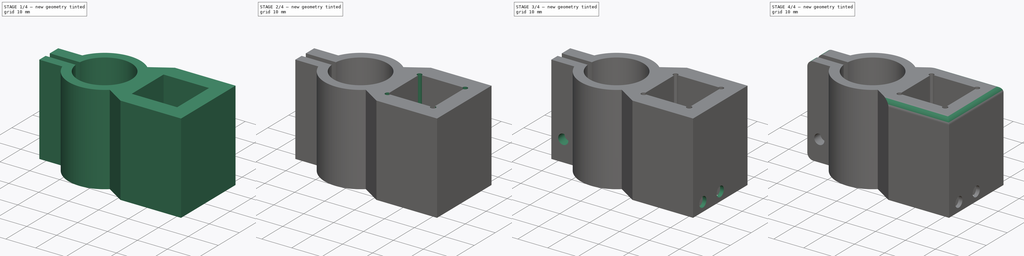
[diagram: build sequence overview — one tinted view per stage of 4, left to right]
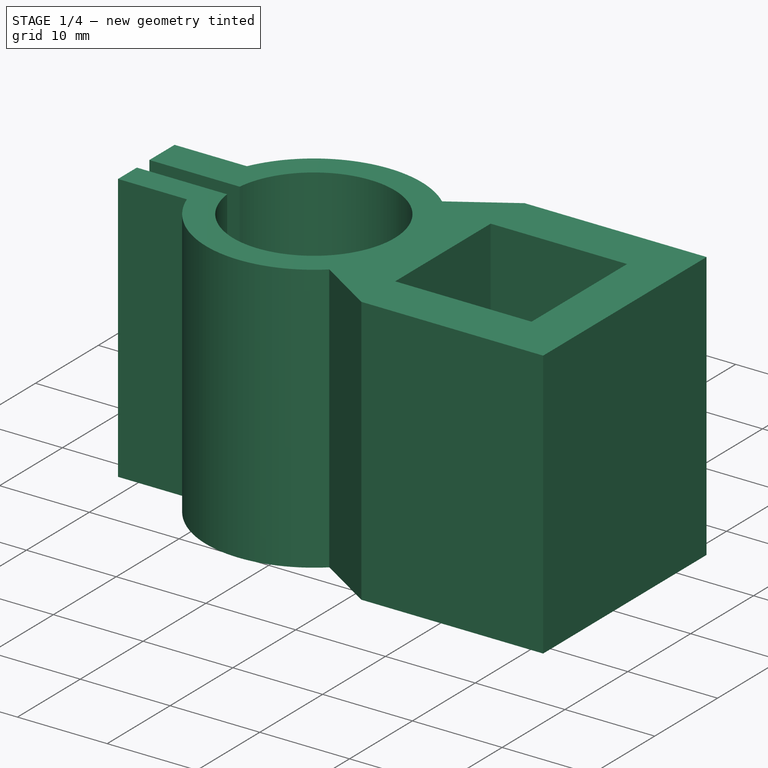
[diagram: stage 1 of 4 — iso view after this stage's code; geometry added in this stage tinted green]
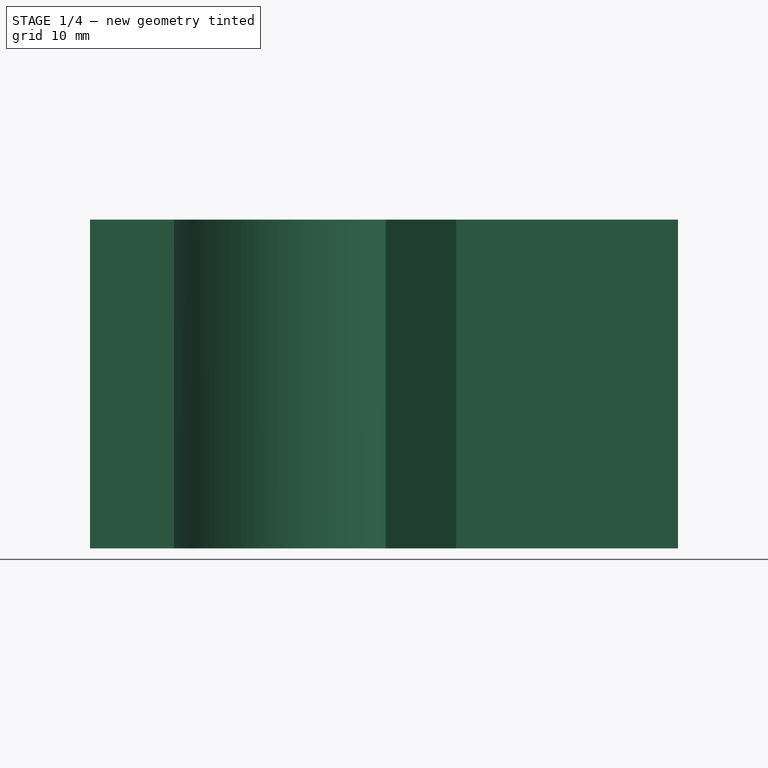
[diagram: stage 1 of 4 — front view after this stage's code; geometry added in this stage tinted green]
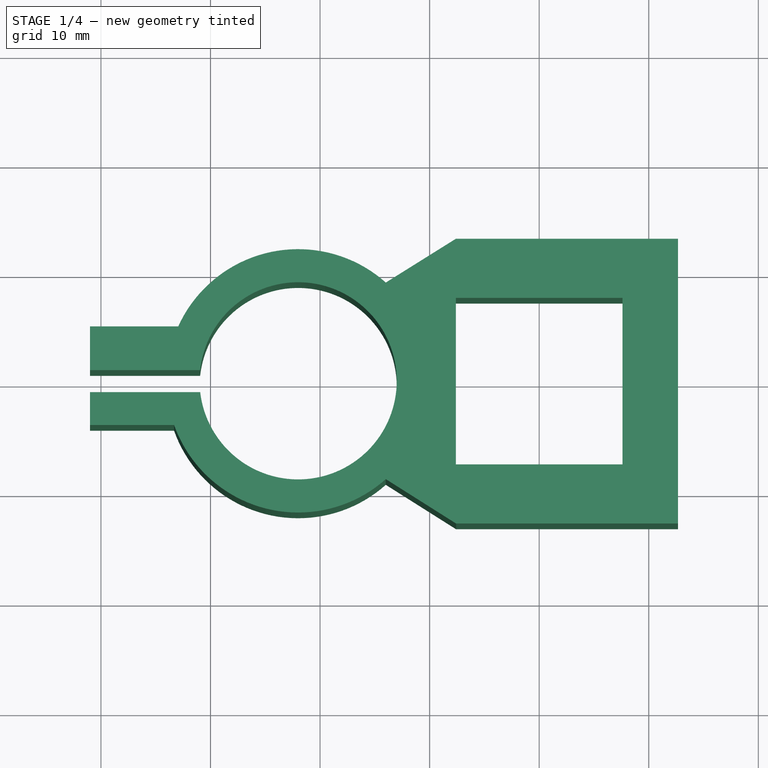
[diagram: stage 1 of 4 — top view after this stage's code; geometry added in this stage tinted green]
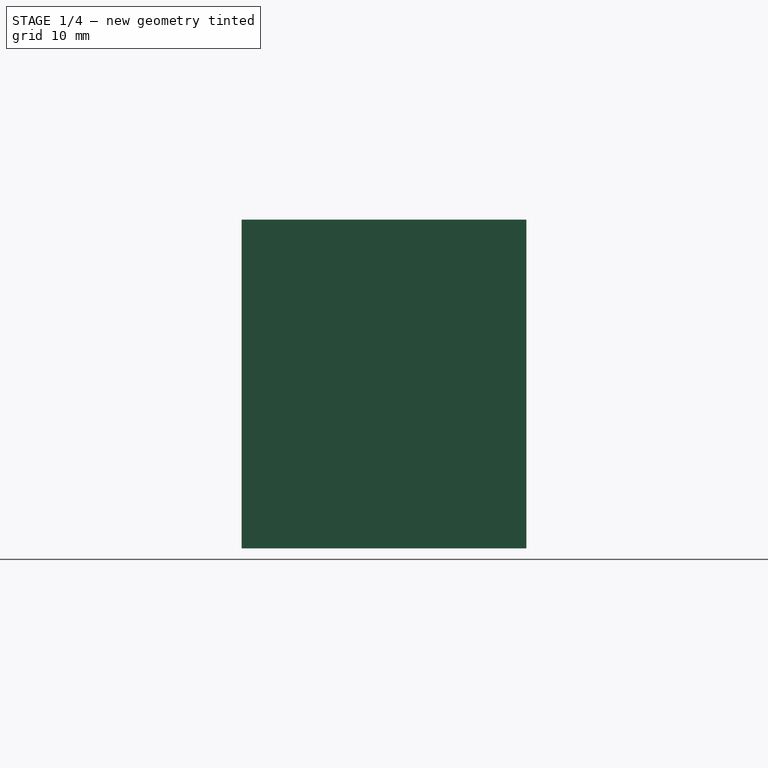
[diagram: stage 1 of 4 — right view after this stage's code; geometry added in this stage tinted green]
FCSTD DOCUMENT  (FreeCAD 0.16R6698 (Git))
Label: pnp head syringe mount
License: All rights reserved
LicenseURL: http://en.wikipedia.org/wiki/All_rights_reserved
objects: Sketcher::SketchObject×7, PartDesign::Pocket×6, PartDesign::Fillet×2, PartDesign::Pad×1
note: 23 computed .brp shape members not serialized (recipe doc carries the construction recipe); baked Part::Feature solids carry a one-line shape summary decoded from their .brp

FEATURE [Sketcher::SketchObject] Sketch
  sketch-geometry (4):
    g0: LineSegment StartX=-41 StartY=13 StartZ=0 EndX=12.6714 EndY=13 EndZ=0
    g1: LineSegment StartX=12.6714 StartY=13 StartZ=0 EndX=12.6714 EndY=-13 EndZ=0
    g2: LineSegment StartX=12.6714 StartY=-13 StartZ=0 EndX=-41 EndY=-13 EndZ=0
    g3: LineSegment StartX=-41 StartY=-13 StartZ=0 EndX=-41 EndY=13 EndZ=0
  constraints (10):
    c: Coincident(g0,g1)
    c: Coincident(g1,g2)
    c: Coincident(g2,g3)
    c: Coincident(g3,g0)
    c: Horizontal(g0)
    c: Horizontal(g2)
    c: Vertical(g1)
    c: Vertical(g3)
    c: DistanceY(g1,g1) = 26
    c: Symmetric(g0,g1,g-1)
FEATURE [PartDesign::Pad] Pad
  Length = 30
  Length2 = 100
  Sketch = -> Sketch
  Type = 0
FEATURE [Sketcher::SketchObject] Sketch001
  Placement = pos=(0,0,0) rot=(1,0,0;3.14159rad)
  Support = -> Pad [Face5]
  sketch-geometry (18):
    g0: LineSegment StartX=-7.6 StartY=7.6 StartZ=0 EndX=7.6 EndY=7.6 EndZ=0
    g1: LineSegment StartX=7.6 StartY=7.6 StartZ=0 EndX=7.6 EndY=-7.6 EndZ=0
    g2: LineSegment StartX=7.6 StartY=-7.6 StartZ=0 EndX=-7.6 EndY=-7.6 EndZ=0
    g3: LineSegment StartX=-7.6 StartY=-7.6 StartZ=0 EndX=-7.6 EndY=7.6 EndZ=0
    g4: ArcOfCircle CenterX=-22 CenterY=-0.027864 CenterZ=0 NormalX=0 NormalY=0 NormalZ=1 Radius=9 StartAngle=3.24982 EndAngle=9.31032
    g5: ArcOfCircle CenterX=-22 CenterY=-0.027864 CenterZ=0 NormalX=0 NormalY=0 NormalZ=1 Radius=12.0208 StartAngle=0.842614 EndAngle=2.79991
    g6: LineSegment StartX=-43 StartY=14 StartZ=0 EndX=-6 EndY=14 EndZ=0
    g7: LineSegment StartX=-6 StartY=-14 StartZ=0 EndX=-43 EndY=-14 EndZ=0
    g8: LineSegment StartX=-43 StartY=-14 StartZ=0 EndX=-43 EndY=-5 EndZ=0
    g9: LineSegment StartX=-6 StartY=14 StartZ=0 EndX=-14 EndY=8.94427 EndZ=0
    g10: LineSegment StartX=-14 StartY=-9 StartZ=0 EndX=-6 EndY=-14 EndZ=0
    g11: LineSegment StartX=-43 StartY=4 StartZ=0 EndX=-33.3259 EndY=4 EndZ=0
    g12: LineSegment StartX=-32.9443 StartY=-5 StartZ=0 EndX=-43 EndY=-5 EndZ=0
    g13: ArcOfCircle CenterX=-22 CenterY=-0.027864 CenterZ=0 NormalX=0 NormalY=0 NormalZ=1 Radius=12.0208 StartAngle=3.56803 EndAngle=5.44057
    g14: LineSegment StartX=-43 StartY=4 StartZ=0 EndX=-43 EndY=14 EndZ=0
    g15: LineSegment StartX=-42 StartY=1 StartZ=0 EndX=-30.9411 EndY=1 EndZ=0
    g16: LineSegment StartX=-30.9473 StartY=-1 StartZ=0 EndX=-42 EndY=-1 EndZ=0
    g17: LineSegment StartX=-42 StartY=-1 StartZ=0 EndX=-42 EndY=1 EndZ=0
  constraints (39):
    c: Coincident(g0,g1)
    c: Coincident(g1,g2)
    c: Coincident(g2,g3)
    c: Coincident(g3,g0)
    c: Horizontal(g0)
    c: Horizontal(g2)
    c: Vertical(g1)
    c: Vertical(g3)
    c: Equal(g0,g3)
    c: DistanceX(g0,g0) = 15.2
    c: Symmetric(g0,g0,g-2)
    c: Symmetric(g0,g2,g-1)
    c: Radius(g4) = 9
    c: Coincident(g5,g4)
    c: Coincident(g7,g8)
    c: Coincident(g14,g6)
    c: Horizontal(g6)
    c: Horizontal(g7)
    c: Vertical(g8)
    c: Coincident(g9,g6)
    c: Coincident(g9,g5)
    c: Coincident(g10,g13)
    c: Coincident(g10,g7)
    c: Horizontal(g11)
    c: Horizontal(g12)
    c: Equal(g5,g13)
    c: Coincident(g5,g13)
    c: Tangent(g8,g14)
    c: Coincident(g11,g14)
    c: Coincident(g11,g5)
    c: Coincident(g12,g13)
    c: Coincident(g12,g8)
    c: Coincident(g16,g17)
    c: Coincident(g17,g15)
    c: Horizontal(g15)
    c: Horizontal(g16)
    c: Vertical(g17)
    c: Coincident(g15,g4)
    c: Coincident(g16,g4)
FEATURE [PartDesign::Pocket] Pocket
  Length = 5
  Sketch = -> Sketch001
  Type = 1
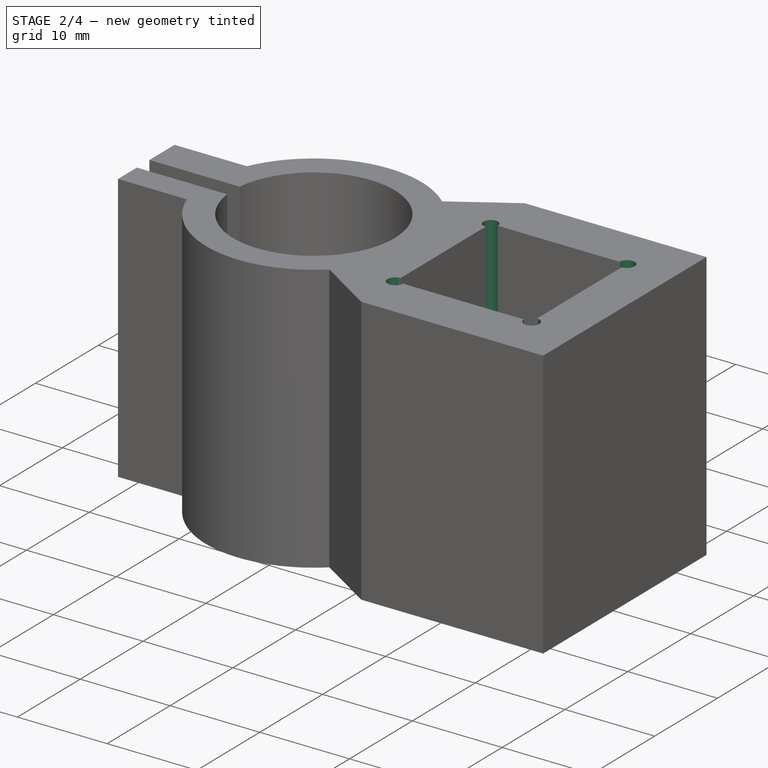
[diagram: stage 2 of 4 — iso view after this stage's code; geometry added in this stage tinted green]
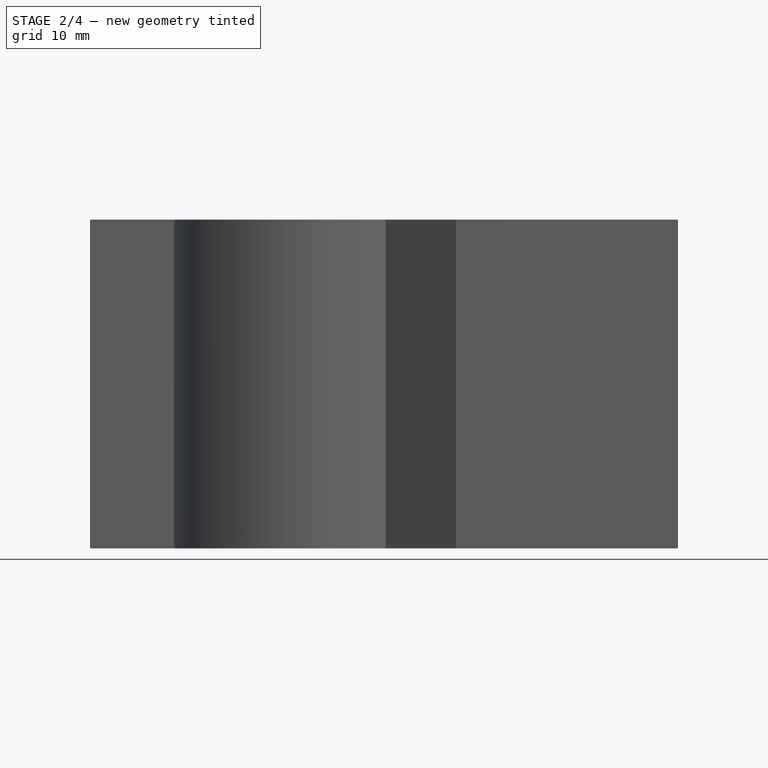
[diagram: stage 2 of 4 — front view after this stage's code; geometry added in this stage tinted green]
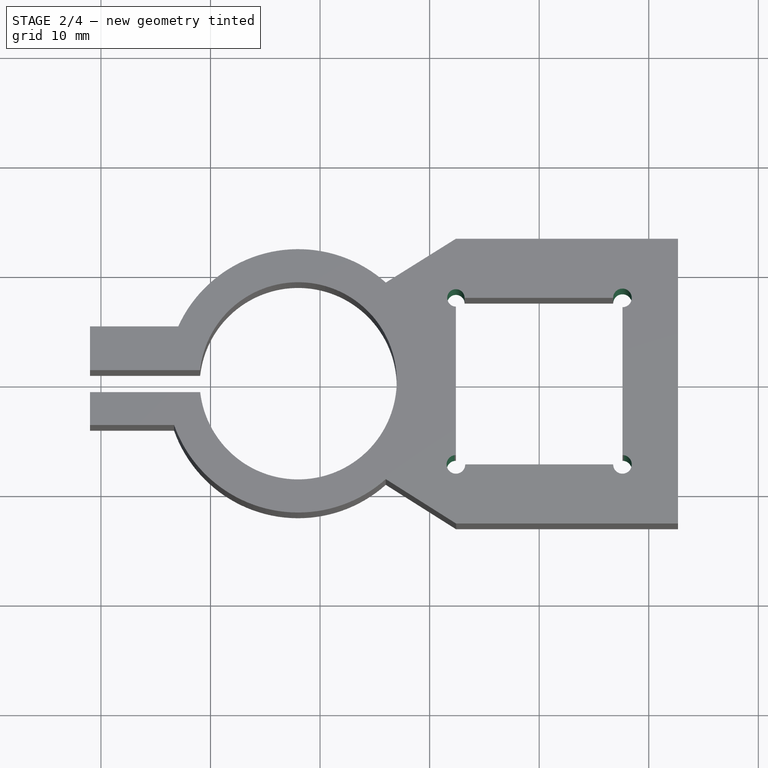
[diagram: stage 2 of 4 — top view after this stage's code; geometry added in this stage tinted green]
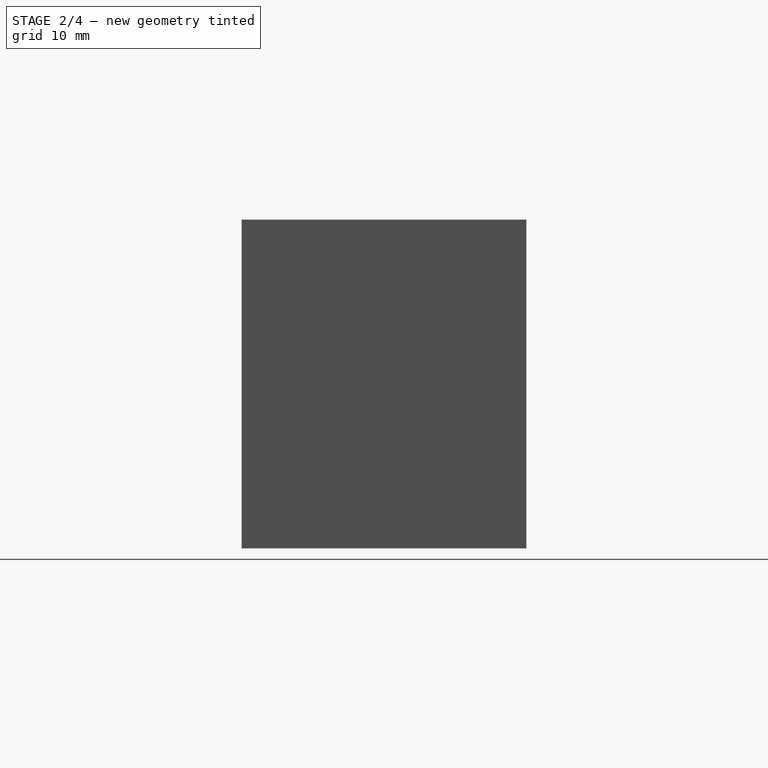
[diagram: stage 2 of 4 — right view after this stage's code; geometry added in this stage tinted green]
FEATURE [Sketcher::SketchObject] Sketch002
  ExternalGeometry = -> [Pocket]
  Placement = pos=(0,0,0) rot=(1,0,0;3.14159rad)
  Support = -> Pocket [Face2]
  sketch-geometry (4):
    g0: Circle CenterX=7.6 CenterY=-7.6 CenterZ=0 NormalX=0 NormalY=0 NormalZ=1 Radius=0.848528
    g1: Circle CenterX=-7.6 CenterY=-7.6 CenterZ=0 NormalX=0 NormalY=0 NormalZ=1 Radius=0.793369
    g2: Circle CenterX=-7.6 CenterY=7.6 CenterZ=0 NormalX=0 NormalY=0 NormalZ=1 Radius=0.848528
    g3: Circle CenterX=7.6 CenterY=7.6 CenterZ=0 NormalX=0 NormalY=0 NormalZ=1 Radius=0.848528
FEATURE [PartDesign::Pocket] Pocket001
  Length = 5
  Sketch = -> Sketch002
  Type = 1
FEATURE [Sketcher::SketchObject] Sketch003
  Placement = pos=(0,0,0) rot=(1,0,0;3.14159rad)
  Support = -> Pocket001 [Face2]
  sketch-geometry (16):
    g0: LineSegment StartX=8.60983 StartY=11.2141 StartZ=0 EndX=11.4098 EndY=11.2141 EndZ=0
    g1: LineSegment StartX=11.4098 StartY=11.2141 StartZ=0 EndX=11.4098 EndY=5.61415 EndZ=0
    g2: LineSegment StartX=11.4098 StartY=5.61415 StartZ=0 EndX=8.60983 EndY=5.61415 EndZ=0
    g3: LineSegment StartX=8.60983 StartY=5.61415 StartZ=0 EndX=8.60983 EndY=11.2141 EndZ=0
    g4: LineSegment [constr] StartX=3.66602 StartY=8.33073 StartZ=0 EndX=14.2682 EndY=8.33073 EndZ=0
    g5: LineSegment [constr] StartX=14.2682 StartY=8.33073 StartZ=0 EndX=14.2682 EndY=6.63073 EndZ=0
    g6: LineSegment [constr] StartX=14.2682 StartY=6.63073 StartZ=0 EndX=3.66602 EndY=6.63073 EndZ=0
    g7: LineSegment [constr] StartX=3.66602 StartY=6.63073 StartZ=0 EndX=3.66602 EndY=8.33073 EndZ=0
    g8: LineSegment [constr] StartX=3.57455 StartY=0.630725 StartZ=0 EndX=13.6141 EndY=0.630725 EndZ=0
    g9: LineSegment [constr] StartX=13.6141 StartY=0.630725 StartZ=0 EndX=13.6141 EndY=-1.06927 EndZ=0
    g10: LineSegment [constr] StartX=13.6141 StartY=-1.06927 StartZ=0 EndX=3.57455 EndY=-1.06927 EndZ=0
    g11: LineSegment [constr] StartX=3.57455 StartY=-1.06927 StartZ=0 EndX=3.57455 EndY=0.630725 EndZ=0
    g12: LineSegment StartX=8.63418 StartY=2.67017 StartZ=0 EndX=11.4342 EndY=2.67017 EndZ=0
    g13: LineSegment StartX=11.4342 StartY=2.67017 StartZ=0 EndX=11.4342 EndY=-2.92983 EndZ=0
    g14: LineSegment StartX=11.4342 StartY=-2.92983 StartZ=0 EndX=8.63418 EndY=-2.92983 EndZ=0
    g15: LineSegment StartX=8.63418 StartY=-2.92983 StartZ=0 EndX=8.63418 EndY=2.67017 EndZ=0
  constraints (39):
    c: Coincident(g0,g1)
    c: Coincident(g1,g2)
    c: Coincident(g2,g3)
    c: Coincident(g3,g0)
    c: Horizontal(g0)
    c: Horizontal(g2)
    c: Vertical(g1)
    c: Vertical(g3)
    c: DistanceX(g0,g0) = 2.8
    c: DistanceY(g3,g3) = 5.6
    c: Coincident(g4,g5)
    c: Coincident(g5,g6)
    c: Coincident(g6,g7)
    c: Coincident(g7,g4)
    c: Horizontal(g4)
    c: Horizontal(g6)
    c: Vertical(g5)
    c: Vertical(g7)
    c: DistanceY(g5,g5) = 1.7
    c: Coincident(g8,g9)
    c: Coincident(g9,g10)
    c: Coincident(g10,g11)
    c: Coincident(g11,g8)
    c: Horizontal(g8)
    c: Horizontal(g10)
    c: Vertical(g9)
    c: Vertical(g11)
    c: DistanceY(g9,g9) = 1.7
    c: DistanceY(g8,g5) = 6
    c: Coincident(g12,g13)
    c: Coincident(g13,g14)
    c: Coincident(g14,g15)
    c: Coincident(g15,g12)
    c: Horizontal(g12)
    c: Horizontal(g14)
    c: Vertical(g13)
    c: Vertical(g15)
    c: DistanceX(g12,g12) = 2.8
    c: DistanceY(g15,g15) = 5.6
FEATURE [PartDesign::Pocket] Pocket002
  Length = 6
  Sketch = -> Sketch003
  Type = 0
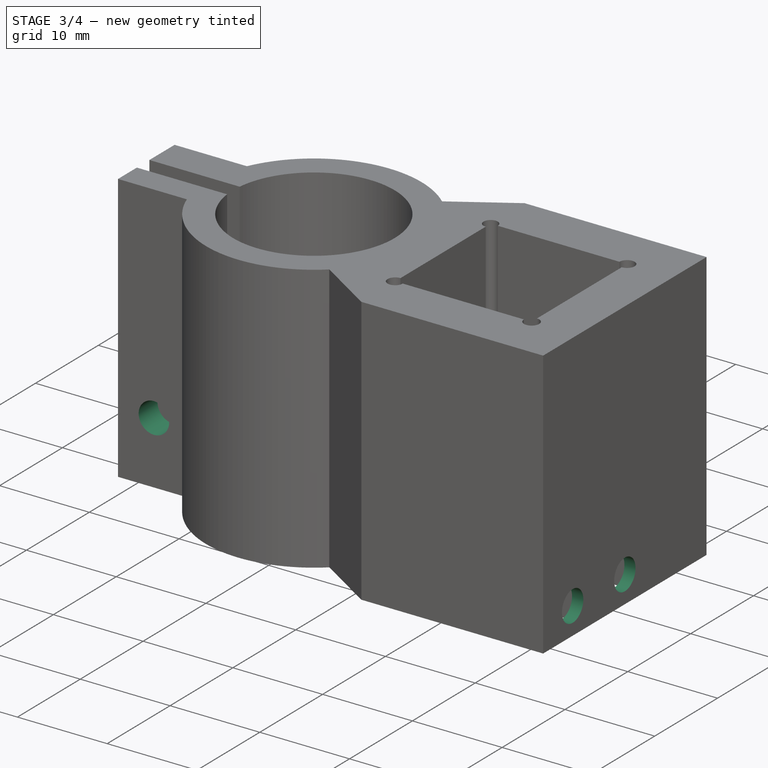
[diagram: stage 3 of 4 — iso view after this stage's code; geometry added in this stage tinted green]
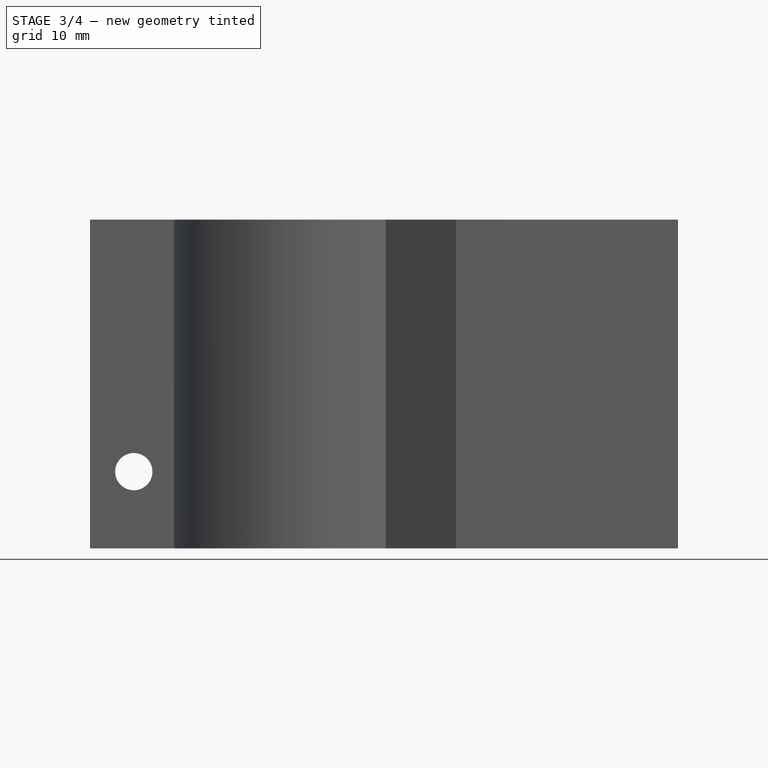
[diagram: stage 3 of 4 — front view after this stage's code; geometry added in this stage tinted green]
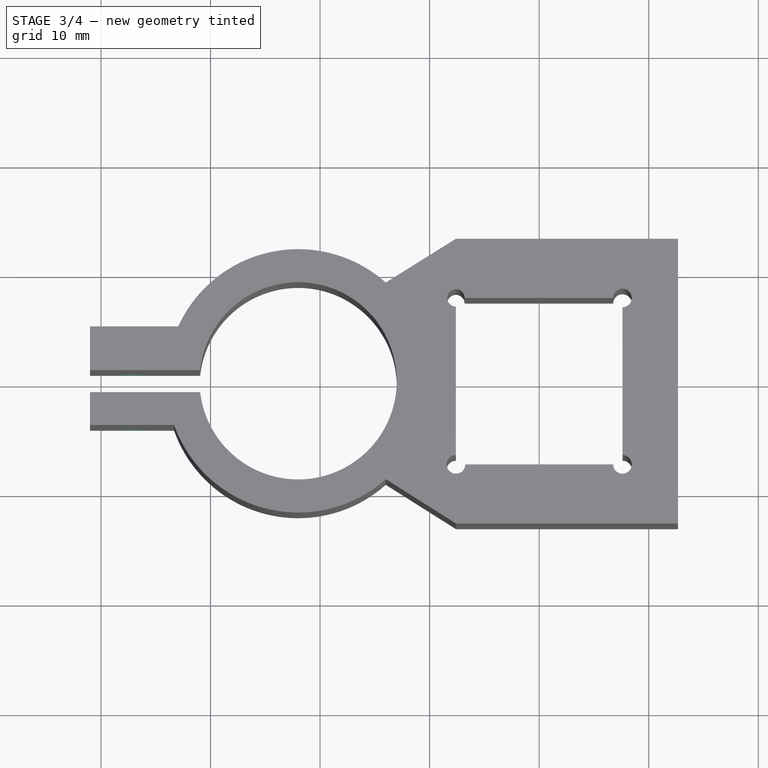
[diagram: stage 3 of 4 — top view after this stage's code; geometry added in this stage tinted green]
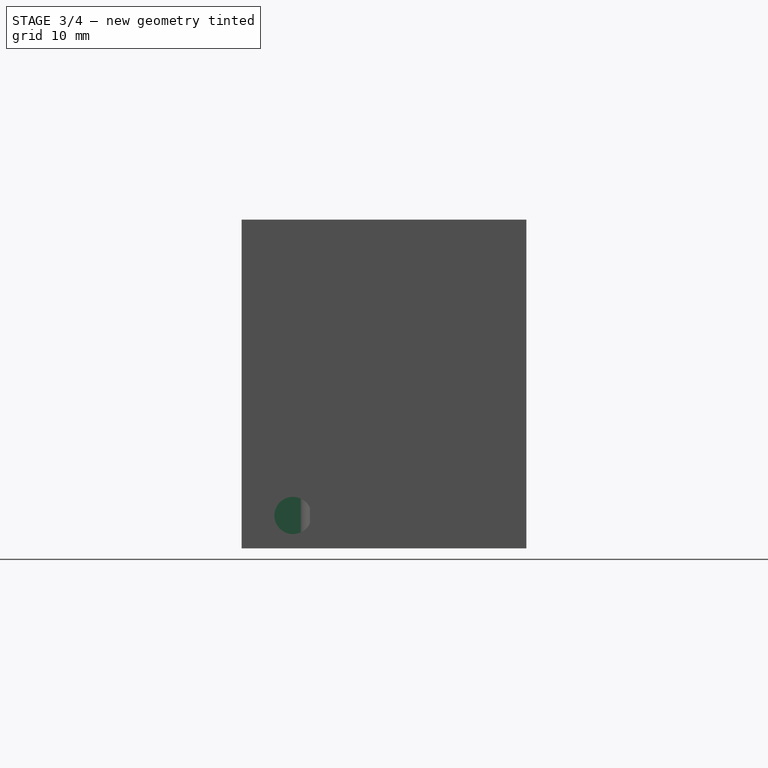
[diagram: stage 3 of 4 — right view after this stage's code; geometry added in this stage tinted green]
FEATURE [Sketcher::SketchObject] Sketch004
  Placement = pos=(12.6714,0,0) rot=(0.57735,0.57735,0.57735;2.0944rad)
  Support = -> Pocket002 [Face3]
  sketch-geometry (2):
    g0: Circle CenterX=0 CenterY=3 CenterZ=0 NormalX=0 NormalY=0 NormalZ=1 Radius=1.7
    g1: Circle CenterX=-8.3038 CenterY=3 CenterZ=0 NormalX=0 NormalY=0 NormalZ=1 Radius=1.7
  constraints (3):
    c: PointOnObject(g0,g-2)
    c: Radius(g1) = 1.7
    c: Equal(g1,g0)
FEATURE [PartDesign::Pocket] Pocket003
  Length = 6
  Sketch = -> Sketch004
  Type = 0
FEATURE [Sketcher::SketchObject] Sketch005
  Placement = pos=(0,-4,0) rot=(1,0,0;1.5708rad)
  Support = -> Pocket003 [Face13]
  sketch-geometry (1):
    g0: Circle CenterX=-37 CenterY=7 CenterZ=0 NormalX=0 NormalY=0 NormalZ=1 Radius=1.7
  constraints (1):
    c: Radius(g0) = 1.7
FEATURE [PartDesign::Pocket] Pocket004
  Length = 5
  Sketch = -> Sketch005
  Type = 1
FEATURE [Sketcher::SketchObject] Sketch006
  ExternalGeometry = -> [Pocket004]
  Placement = pos=(0,5,0) rot=(0,0.707107,0.707107;3.14159rad)
  Support = -> Pocket004 [Face8]
  sketch-geometry (7):
    g0: LineSegment StartX=39.6927 StartY=8.99071 StartZ=0 EndX=36.6223 EndY=10.3273 EndZ=0
    g1: LineSegment StartX=36.6223 StartY=10.3273 StartZ=0 EndX=33.9297 EndY=8.33655 EndZ=0
    g2: LineSegment StartX=33.9297 StartY=8.33655 StartZ=0 EndX=34.3073 EndY=5.00929 EndZ=0
    g3: LineSegment StartX=34.3073 StartY=5.00929 StartZ=0 EndX=37.3777 EndY=3.67274 EndZ=0
    g4: LineSegment StartX=37.3777 StartY=3.67274 StartZ=0 EndX=40.0703 EndY=5.66345 EndZ=0
    g5: LineSegment StartX=40.0703 StartY=5.66345 StartZ=0 EndX=39.6927 EndY=8.99071 EndZ=0
    g6: Circle [constr] CenterX=37 CenterY=7 CenterZ=0 NormalX=0 NormalY=0 NormalZ=1 Radius=3.34863
  constraints (15):
    c: Coincident(g0,g1)
    c: Coincident(g1,g2)
    c: Coincident(g2,g3)
    c: Coincident(g3,g4)
    c: Coincident(g4,g5)
    c: Coincident(g5,g0)
    c: Equal(g0, g1-g5) x5
    c: PointOnObject(g0,g6)
    c: PointOnObject(g1,g6)
    c: PointOnObject(g2,g6)
    c: PointOnObject(g3,g6)
    c: PointOnObject(g4,g6)
    c: PointOnObject(g5,g6)
    c: Coincident(g6,g-3)
    c: Distance(g0,g2) = 5.8
FEATURE [PartDesign::Pocket] Pocket005
  Length = 3
  Sketch = -> Sketch006
  Type = 0
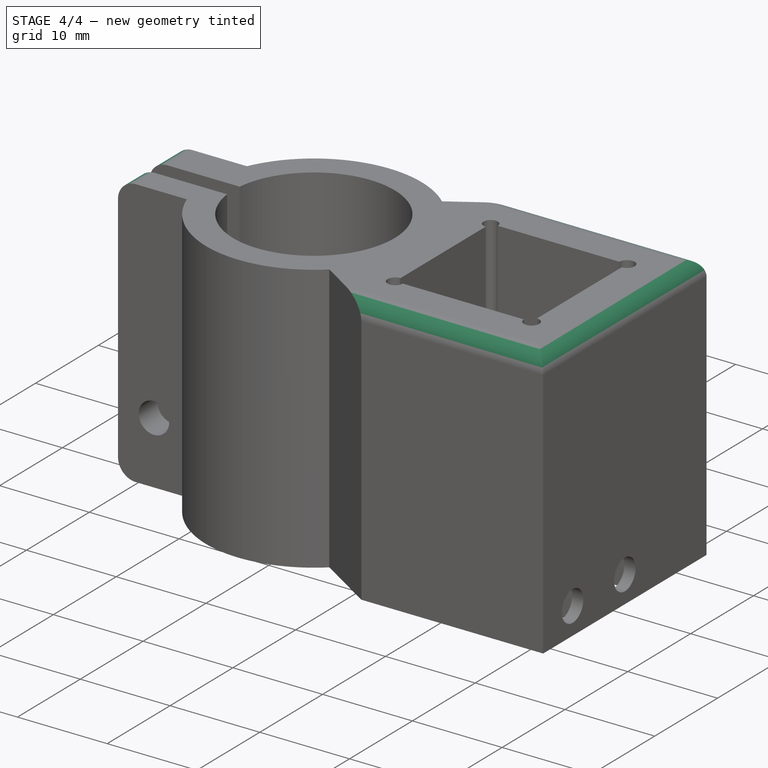
[diagram: stage 4 of 4 — iso view after this stage's code; geometry added in this stage tinted green]
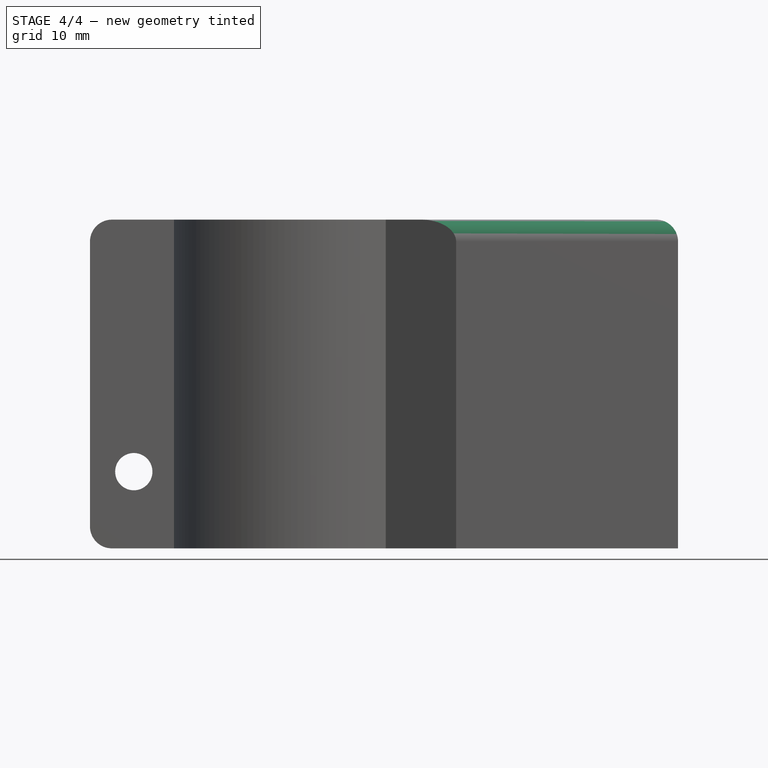
[diagram: stage 4 of 4 — front view after this stage's code; geometry added in this stage tinted green]
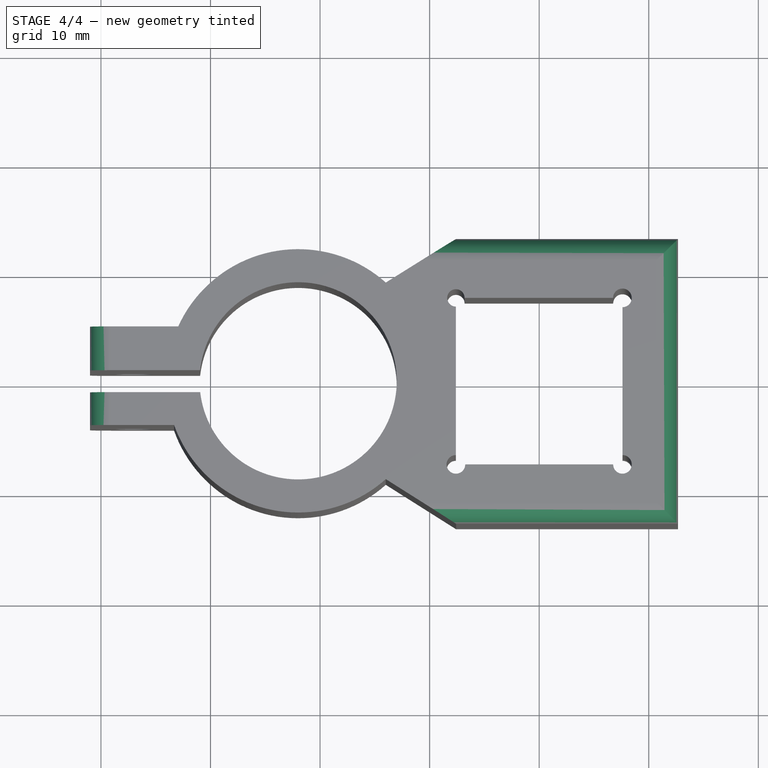
[diagram: stage 4 of 4 — top view after this stage's code; geometry added in this stage tinted green]
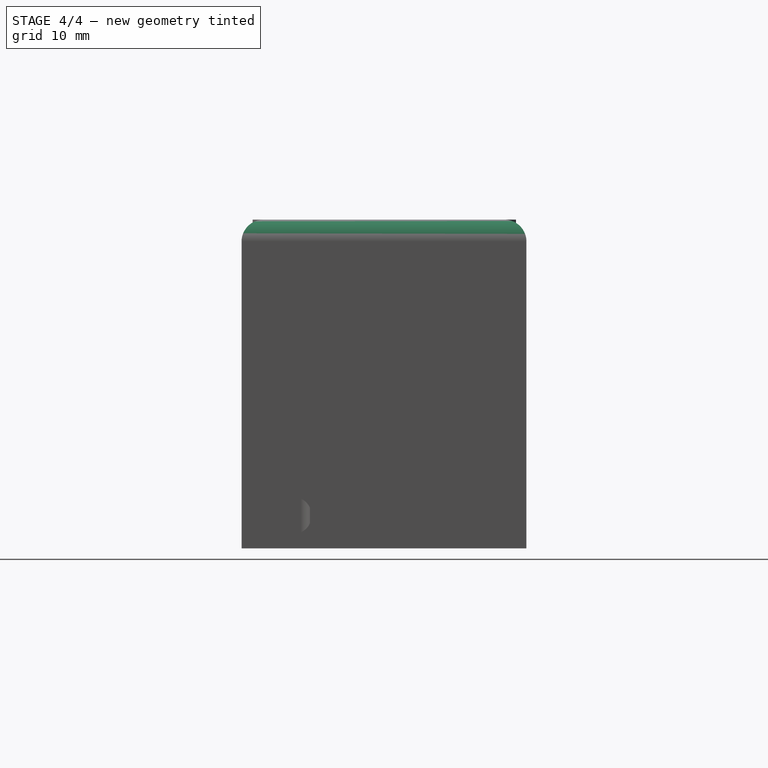
[diagram: stage 4 of 4 — right view after this stage's code; geometry added in this stage tinted green]
FEATURE [PartDesign::Fillet] Fillet
  Base = -> Pocket005 [Edge42,Edge36,Edge3,Edge50,Edge45]
  Radius = 2
FEATURE [PartDesign::Fillet] Fillet001
  Base = -> Fillet [Edge18,Edge23]
  Radius = 2
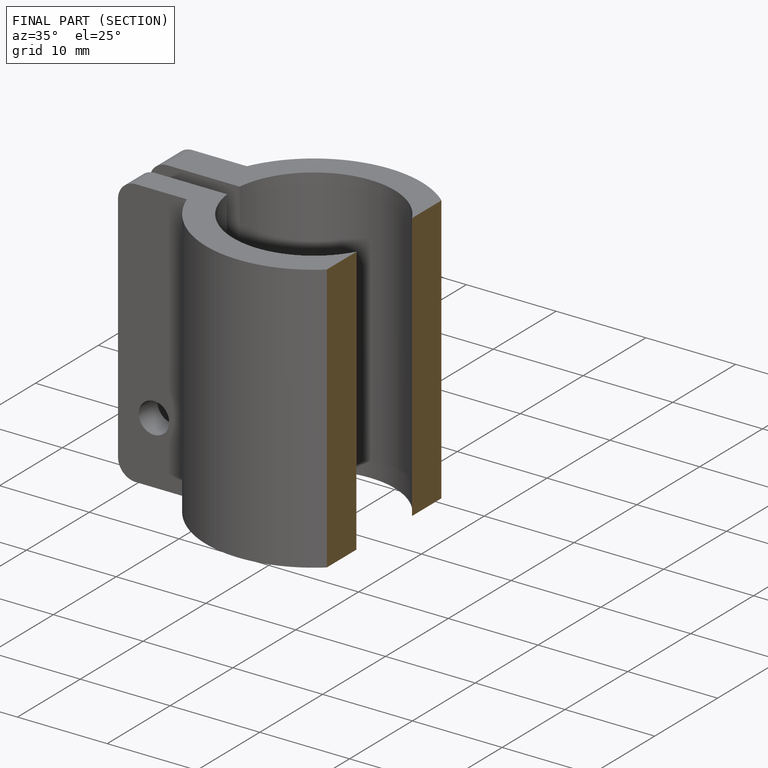
[diagram: finished part — half-section view (interior)]
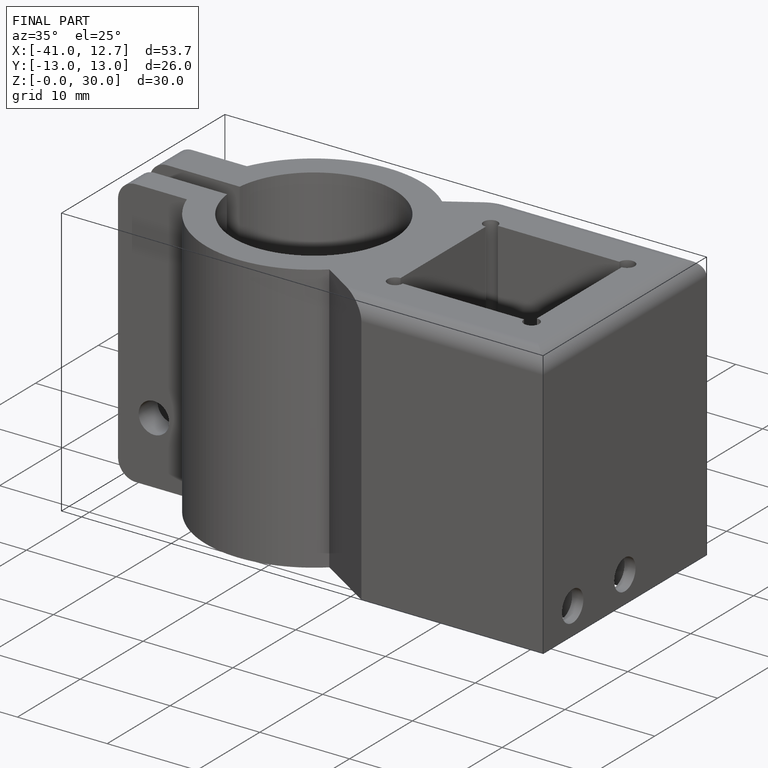
[diagram: finished part — iso view with bounding-box wireframe]
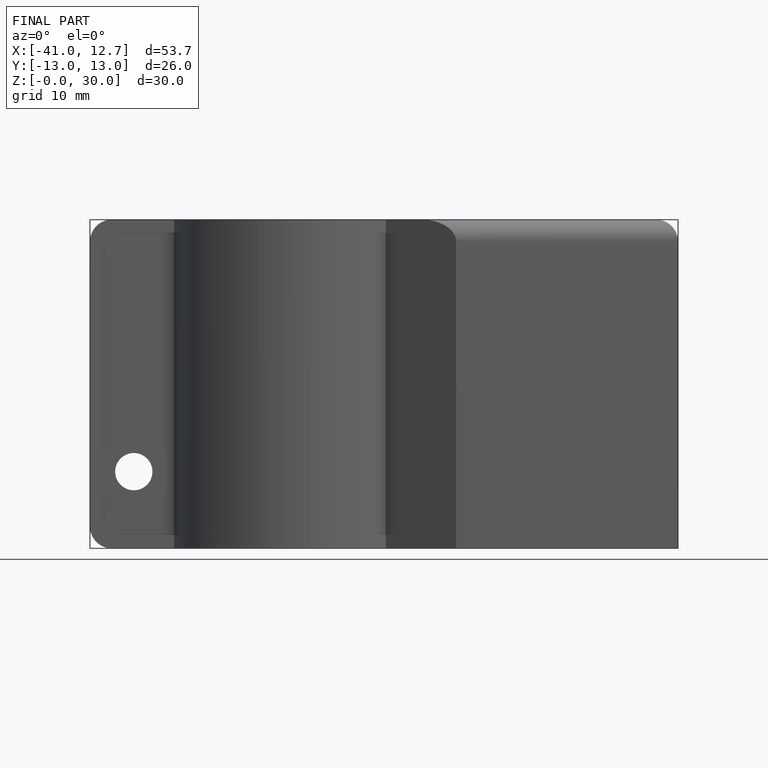
[diagram: finished part — front view with bounding-box wireframe]
